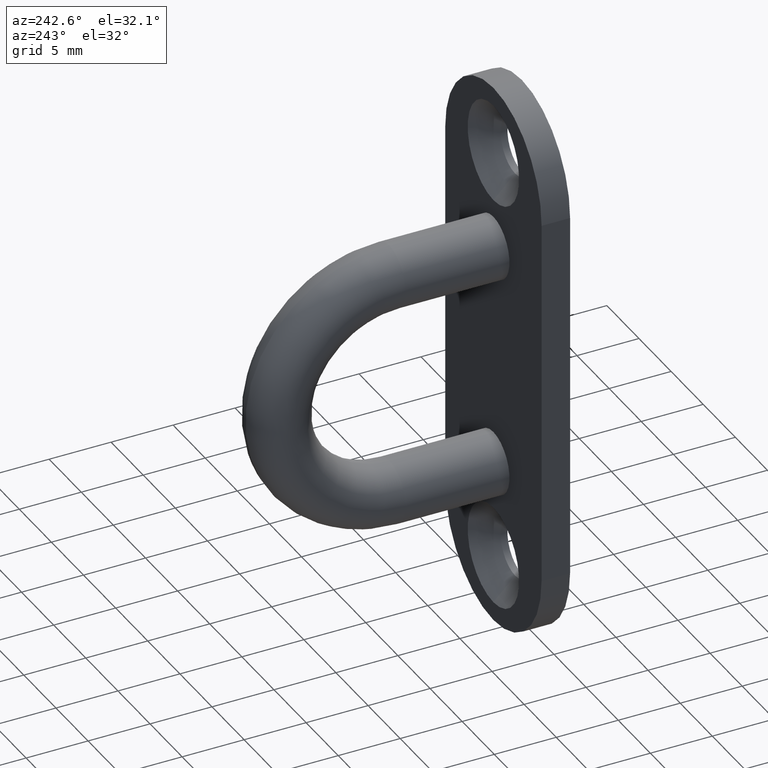
[diagram: clean part render]
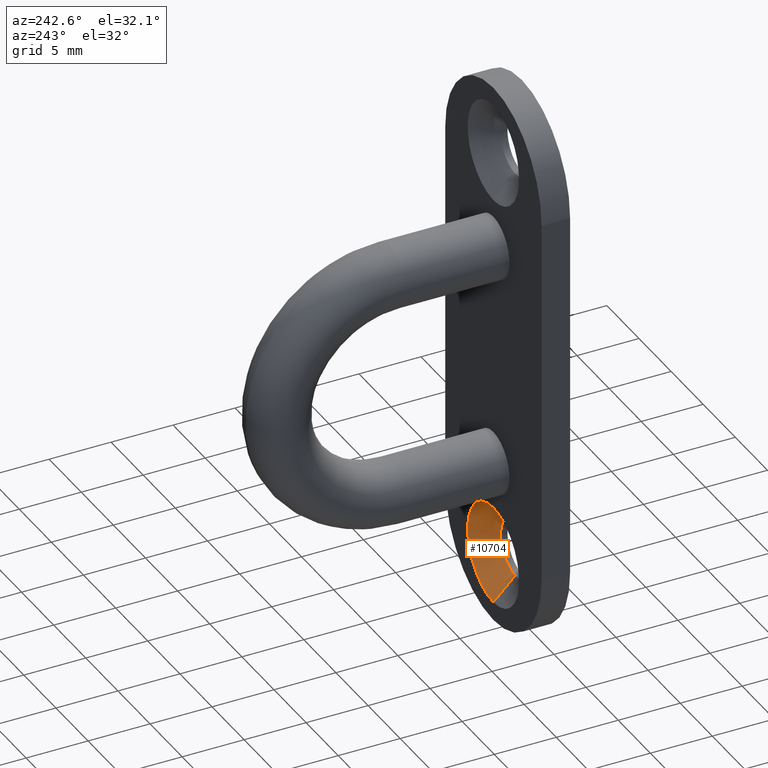
[diagram: same view with one face highlighted and labeled with its STEP entity id]
A machine part, auxiliary view. The second image highlights one B-rep face of the part: STEP entity #10704.
In plain terms, the highlighted conical surface has half-angle 45 deg.
Its self-contained STEP definition (entity closure, byte-faithful):
#291 = CARTESIAN_POINT ( 'NONE',  ( 6.000769315822030900E-015, 2.299999999999999800, -17.00000000000000000 ) ) ;
#596 = CARTESIAN_POINT ( 'NONE',  ( 6.000769315822030900E-015, 2.299999999999999800, -13.00000000000000500 ) ) ;
#632 = DIRECTION ( 'NONE',  ( 0.0000000000000000000, 0.7071067811865462400, 0.7071067811865489100 ) ) ;
#644 = AXIS2_PLACEMENT_3D ( 'NONE', #291, #3449, #9608 ) ;
#880 = LINE ( 'NONE', #5722, #2981 ) ;
#1752 = ORIENTED_EDGE ( 'NONE', *, *, #11985, .T. ) ;
#2026 = DIRECTION ( 'NONE',  ( 0.0000000000000000000, 1.000000000000000000, 0.0000000000000000000 ) ) ;
#2126 = EDGE_CURVE ( 'NONE', #8158, #13029, #7389, .T. ) ;
#2884 = DIRECTION ( 'NONE',  ( 0.0000000000000000000, 1.000000000000000000, 0.0000000000000000000 ) ) ;
#2981 = VECTOR ( 'NONE', #632, 999.9999999999998900 ) ;
#3197 = ORIENTED_EDGE ( 'NONE', *, *, #5083, .F. ) ;
#3449 = DIRECTION ( 'NONE',  ( -0.0000000000000000000, -1.000000000000000000, -0.0000000000000000000 ) ) ;
#3658 = EDGE_LOOP ( 'NONE', ( #10004, #12689, #1752, #3197 ) ) ;
#3965 = VECTOR ( 'NONE', #12013, 999.9999999999998900 ) ;
#4568 = VERTEX_POINT ( 'NONE', #596 ) ;
#4758 = CARTESIAN_POINT ( 'NONE',  ( 6.276314845630185800E-015, 0.5500000000000088200, -19.25000000000000000 ) ) ;
#5020 = DIRECTION ( 'NONE',  ( 0.0000000000000000000, 0.0000000000000000000, 1.000000000000000000 ) ) ;
#5074 = DIRECTION ( 'NONE',  ( 0.0000000000000000000, 0.0000000000000000000, 1.000000000000000000 ) ) ;
#5083 = EDGE_CURVE ( 'NONE', #8157, #4568, #10599, .T. ) ;
#5115 = CARTESIAN_POINT ( 'NONE',  ( 6.000769315822030900E-015, 0.5500000000000088200, -17.00000000000000000 ) ) ;
#5722 = CARTESIAN_POINT ( 'NONE',  ( 6.000769315822030900E-015, 0.5500000000000088200, -14.75000000000000400 ) ) ;
#5759 = CONICAL_SURFACE ( 'NONE', #10928, 2.249999999999998700, 0.7853981633974500600 ) ;
#6032 = CARTESIAN_POINT ( 'NONE',  ( 6.000769315822030900E-015, 0.5500000000000088200, -17.00000000000000000 ) ) ;
#7277 = CARTESIAN_POINT ( 'NONE',  ( 6.276314845630185800E-015, 0.5500000000000088200, -14.75000000000000400 ) ) ;
#7389 = CIRCLE ( 'NONE', #9113, 2.249999999999998700 ) ;
#8158 = VERTEX_POINT ( 'NONE', #7277 ) ;
#8157 = VERTEX_POINT ( 'NONE', #13489 ) ;
#9113 = AXIS2_PLACEMENT_3D ( 'NONE', #6032, #2884, #5074 ) ;
#9608 = DIRECTION ( 'NONE',  ( 0.0000000000000000000, 0.0000000000000000000, 1.000000000000000000 ) ) ;
#10004 = ORIENTED_EDGE ( 'NONE', *, *, #12726, .F. ) ;
#10599 = CIRCLE ( 'NONE', #644, 3.999999999999996400 ) ;
#10704 = ADVANCED_FACE ( 'NONE', ( #12254 ), #5759, .F. ) ;
#10928 = AXIS2_PLACEMENT_3D ( 'NONE', #5115, #2026, #5020 ) ;
#11985 = EDGE_CURVE ( 'NONE', #8158, #4568, #880, .T. ) ;
#12013 = DIRECTION ( 'NONE',  ( 8.659560562354947600E-017, 0.7071067811865462400, -0.7071067811865489100 ) ) ;
#12254 = FACE_OUTER_BOUND ( 'NONE', #3658, .T. ) ;
#12406 = LINE ( 'NONE', #4758, #3965 ) ;
#12689 = ORIENTED_EDGE ( 'NONE', *, *, #2126, .F. ) ;
#12726 = EDGE_CURVE ( 'NONE', #13029, #8157, #12406, .T. ) ;
#12735 = CARTESIAN_POINT ( 'NONE',  ( 6.000769315822030900E-015, 0.5500000000000088200, -19.25000000000000000 ) ) ;
#13029 = VERTEX_POINT ( 'NONE', #12735 ) ;
#13489 = CARTESIAN_POINT ( 'NONE',  ( 6.490628035480972300E-015, 2.299999999999999800, -20.99999999999999600 ) ) ;